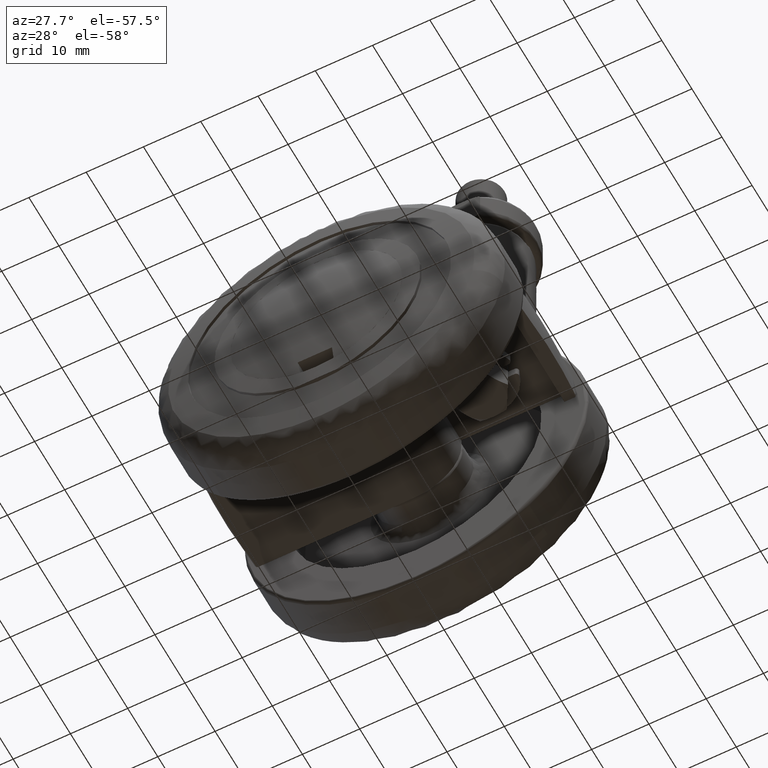
[diagram: clean part render]
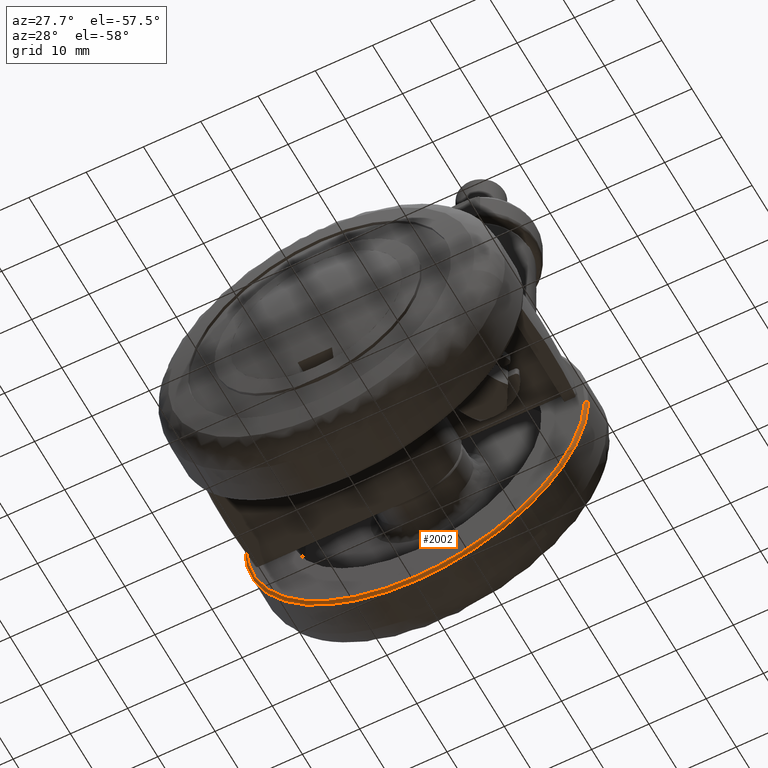
[diagram: same view with one face highlighted and labeled with its STEP entity id]
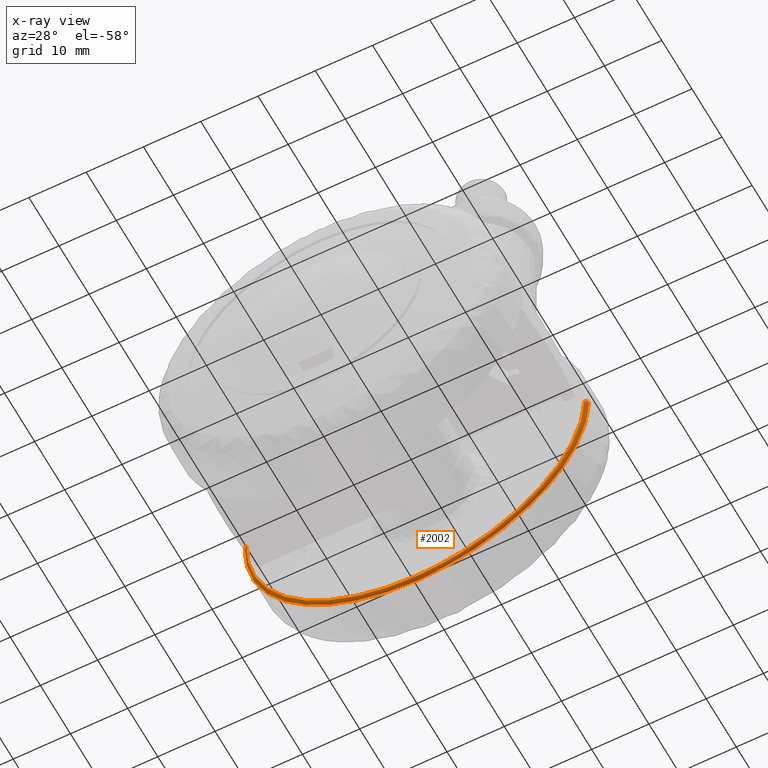
[diagram: x-ray of the same camera — body ghosted, the highlighted face saturated]
A machine part, auxiliary view. The second image highlights one B-rep face of the part: STEP entity #2002.
The next image is the same camera in x-ray: the body ghosted, the highlighted face saturated — about 0% of this face is hidden behind the body in this view.
In plain terms, the highlighted face is a freeform B-spline surface patch.
Its self-contained STEP definition (entity closure, byte-faithful):
#873=CARTESIAN_POINT('',(29.990525678497679,10.999999999929541,-0.753902863352724));
#874=VERTEX_POINT('',#873);
#890=CARTESIAN_POINT('',(19.630187422599640,10.999999999982380,-22.686025252417171));
#891=VERTEX_POINT('',#890);
#892=CARTESIAN_POINT('',(29.990525678497676,10.999999999929537,-0.753902863352724));
#893=CARTESIAN_POINT('',(29.657304149899662,10.999999999961474,-14.009574509042398));
#894=CARTESIAN_POINT('',(19.630187422599640,10.999999999982377,-22.686025252417167));
#902=(BOUNDED_CURVE()B_SPLINE_CURVE(2,(#892,#893,#894),.UNSPECIFIED.,.F.,.U.)B_SPLINE_CURVE_WITH_KNOTS((3,3),(0.254420108230806,0.385882135182826),.UNSPECIFIED.)CURVE()GEOMETRIC_REPRESENTATION_ITEM()RATIONAL_B_SPLINE_CURVE((0.989826157680189,0.841254999448454,0.854663299990318))REPRESENTATION_ITEM(''));
#903=EDGE_CURVE('',#874,#891,#902,.T.);
#947=CARTESIAN_POINT('',(0.0,11.0,-30.0));
#948=VERTEX_POINT('',#947);
#949=CARTESIAN_POINT('',(19.630187422599640,10.999999999982377,-22.686025252417167));
#950=CARTESIAN_POINT('',(11.177643784216981,11.0,-30.0));
#951=CARTESIAN_POINT('',(0.0,11.0,-30.0));
#959=(BOUNDED_CURVE()B_SPLINE_CURVE(2,(#949,#950,#951),.UNSPECIFIED.,.F.,.U.)B_SPLINE_CURVE_WITH_KNOTS((3,3),(0.385882135182826,0.500000000000000),.UNSPECIFIED.)CURVE()GEOMETRIC_REPRESENTATION_ITEM()RATIONAL_B_SPLINE_CURVE((0.854663299990318,0.866302604998318,1.0))REPRESENTATION_ITEM(''));
#960=EDGE_CURVE('',#891,#948,#959,.T.);
#962=CARTESIAN_POINT('',(-29.990525678497679,10.999999999929541,0.753902863352735));
#963=VERTEX_POINT('',#962);
#964=CARTESIAN_POINT('',(0.0,11.0,-30.0));
#965=CARTESIAN_POINT('',(-29.999999999999993,11.0,-29.999999999999993));
#966=CARTESIAN_POINT('',(-30.0,11.0,4.041201E-015));
#967=CARTESIAN_POINT('',(-30.0,11.000000000000005,0.377010963754011));
#968=CARTESIAN_POINT('',(-29.990525678497679,10.999999999929535,0.753902863352735));
#976=(BOUNDED_CURVE()B_SPLINE_CURVE(2,(#964,#965,#966,#967,#968),.UNSPECIFIED.,.F.,.U.)B_SPLINE_CURVE_WITH_KNOTS((3,2,3),(0.500000000000000,0.750000000000000,0.754420108230806),.UNSPECIFIED.)CURVE()GEOMETRIC_REPRESENTATION_ITEM()RATIONAL_B_SPLINE_CURVE((1.0,0.707106781186547,1.0,0.994821521091101,0.989826157680189))REPRESENTATION_ITEM(''));
#977=EDGE_CURVE('',#948,#963,#976,.T.);
#1914=CARTESIAN_POINT('',(-29.989309213910534,11.034862130760684,0.753872283771575));
#1915=CARTESIAN_POINT('',(-30.743181497682116,11.034862130760692,-29.235436930138942));
#1916=CARTESIAN_POINT('',(-0.753872283771580,11.034862130760695,-29.989309213910534));
#1917=CARTESIAN_POINT('',(29.235436930138942,11.034862130760692,-30.743181497682102));
#1918=CARTESIAN_POINT('',(29.989309213910534,11.034862130760684,-0.753872283771578));
#1919=CARTESIAN_POINT('',(-30.029383131827391,10.461331221997650,0.754879663294864));
#1920=CARTESIAN_POINT('',(-30.784262795122256,10.461331221997659,-29.274503468532519));
#1921=CARTESIAN_POINT('',(-0.754879663294868,10.461331221997659,-30.029383131827391));
#1922=CARTESIAN_POINT('',(29.274503468532519,10.461331221997659,-30.784262795122256));
#1923=CARTESIAN_POINT('',(30.029383131827391,10.461331221997650,-0.754879663294866));
#1924=CARTESIAN_POINT('',(-29.456018443334980,10.501203880657545,0.740466402086858));
#1925=CARTESIAN_POINT('',(-30.196484845421839,10.501203880657558,-28.715552041248117));
#1926=CARTESIAN_POINT('',(-0.740466402086862,10.501203880657560,-29.456018443334973));
#1927=CARTESIAN_POINT('',(28.715552041248102,10.501203880657558,-30.196484845421839));
#1928=CARTESIAN_POINT('',(29.456018443334980,10.501203880657545,-0.740466402086860));
#1936=(BOUNDED_SURFACE()B_SPLINE_SURFACE(2,2,((#1914,#1919,#1924),(#1915,#1920,#1925),(#1916,#1921,#1926),(#1917,#1922,#1927),(#1918,#1923,#1928)),.UNSPECIFIED.,.F.,.F.,.U.)B_SPLINE_SURFACE_WITH_KNOTS((3,2,3),(3,3),(0.0,49.703611343529630,99.407222687059260),(0.0,0.911186182557475),.UNSPECIFIED.)GEOMETRIC_REPRESENTATION_ITEM()RATIONAL_B_SPLINE_SURFACE(((0.910892973151577,0.599412584116369,0.915967299897522),(0.644098598250656,0.423848702957236,0.647686689102670),(0.910892973151577,0.599412584116369,0.915967299897522),(0.644098598250656,0.423848702957236,0.647686689102670),(0.910892973151577,0.599412584116369,0.915967299897522)))REPRESENTATION_ITEM('')SURFACE());
#1937=ORIENTED_EDGE('',*,*,#977,.F.);
#1938=ORIENTED_EDGE('',*,*,#960,.F.);
#1939=ORIENTED_EDGE('',*,*,#903,.F.);
#1940=CARTESIAN_POINT('',(29.490683623598201,10.500000000000000,-0.741337816908187));
#1941=VERTEX_POINT('',#1940);
#1942=CARTESIAN_POINT('',(29.990525678497676,10.999999999929537,-0.753902863352724));
#1943=CARTESIAN_POINT('',(29.990525678358111,10.500000079523433,-0.753902863296577));
#1944=CARTESIAN_POINT('',(29.490683623598194,10.500000000000002,-0.741337816908187));
#1952=(BOUNDED_CURVE()B_SPLINE_CURVE(2,(#1942,#1943,#1944),.UNSPECIFIED.,.F.,.U.)B_SPLINE_CURVE_WITH_KNOTS((3,3),(-1.723441281694573,-0.263587043535462),.UNSPECIFIED.)CURVE()GEOMETRIC_REPRESENTATION_ITEM()RATIONAL_B_SPLINE_CURVE((0.883897567036387,0.626638756297124,0.888510350007246))REPRESENTATION_ITEM(''));
#1953=EDGE_CURVE('',#874,#1941,#1952,.T.);
#1954=ORIENTED_EDGE('',*,*,#1953,.T.);
#1955=CARTESIAN_POINT('',(0.0,10.500000000000000,-29.500000000000000));
#1956=VERTEX_POINT('',#1955);
#1957=CARTESIAN_POINT('',(29.490683623598198,10.500000000000007,-0.741337816908187));
#1958=CARTESIAN_POINT('',(28.767747346684107,10.500000000000000,-29.500000000000000));
#1959=CARTESIAN_POINT('',(0.0,10.500000000000000,-29.500000000000000));
#1967=(BOUNDED_CURVE()B_SPLINE_CURVE(2,(#1957,#1958,#1959),.UNSPECIFIED.,.F.,.U.)B_SPLINE_CURVE_WITH_KNOTS((3,3),(0.254420108234115,0.500000000000000),.UNSPECIFIED.)CURVE()GEOMETRIC_REPRESENTATION_ITEM()RATIONAL_B_SPLINE_CURVE((0.989826157672711,0.712285260099322,1.0))REPRESENTATION_ITEM(''));
#1968=EDGE_CURVE('',#1941,#1956,#1967,.T.);
#1969=ORIENTED_EDGE('',*,*,#1968,.T.);
#1970=CARTESIAN_POINT('',(-29.490683623598191,10.500000000000000,0.741337816908196));
#1971=VERTEX_POINT('',#1970);
#1972=CARTESIAN_POINT('',(0.0,10.500000000000000,-29.500000000000000));
#1973=CARTESIAN_POINT('',(-29.499999999999996,10.500000000000002,-29.499999999999996));
#1974=CARTESIAN_POINT('',(-29.500000000000000,10.500000000000000,3.857510E-015));
#1975=CARTESIAN_POINT('',(-29.500000000000007,10.500000000000005,0.370727447970379));
#1976=CARTESIAN_POINT('',(-29.490683623598198,10.500000000000007,0.741337816908196));
#1984=(BOUNDED_CURVE()B_SPLINE_CURVE(2,(#1972,#1973,#1974,#1975,#1976),.UNSPECIFIED.,.F.,.U.)B_SPLINE_CURVE_WITH_KNOTS((3,2,3),(0.500000000000000,0.750000000000000,0.754420108234115),.UNSPECIFIED.)CURVE()GEOMETRIC_REPRESENTATION_ITEM()RATIONAL_B_SPLINE_CURVE((1.0,0.707106781186548,1.0,0.994821521087225,0.989826157672711))REPRESENTATION_ITEM(''));
#1985=EDGE_CURVE('',#1956,#1971,#1984,.T.);
#1986=ORIENTED_EDGE('',*,*,#1985,.T.);
#1987=CARTESIAN_POINT('',(-29.990525678497676,10.999999999929537,0.753902863352735));
#1988=CARTESIAN_POINT('',(-29.990525678358097,10.500000079523435,0.753902863296588));
#1989=CARTESIAN_POINT('',(-29.490683623598194,10.500000000000004,0.741337816908196));
#1997=(BOUNDED_CURVE()B_SPLINE_CURVE(2,(#1987,#1988,#1989),.UNSPECIFIED.,.F.,.U.)B_SPLINE_CURVE_WITH_KNOTS((3,3),(-1.723441281694578,-0.263587043535464),.UNSPECIFIED.)CURVE()GEOMETRIC_REPRESENTATION_ITEM()RATIONAL_B_SPLINE_CURVE((0.883897567036388,0.626638756297124,0.888510350007245))REPRESENTATION_ITEM(''));
#1998=EDGE_CURVE('',#963,#1971,#1997,.T.);
#1999=ORIENTED_EDGE('',*,*,#1998,.F.);
#2000=EDGE_LOOP('',(#1937,#1938,#1939,#1954,#1969,#1986,#1999));
#2001=FACE_OUTER_BOUND('',#2000,.T.);
#2002=ADVANCED_FACE('',(#2001),#1936,.T.);